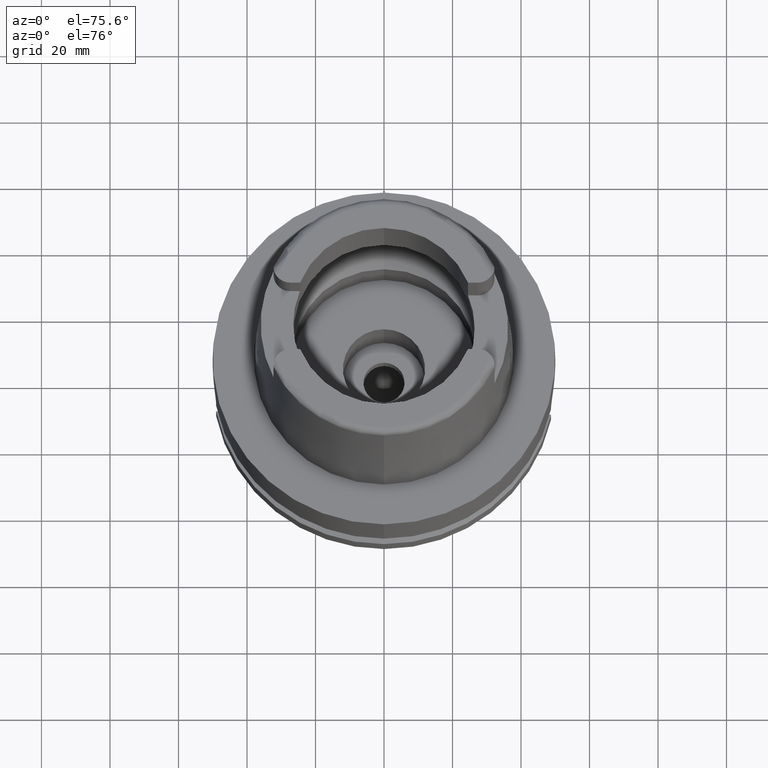
[diagram: clean part render]
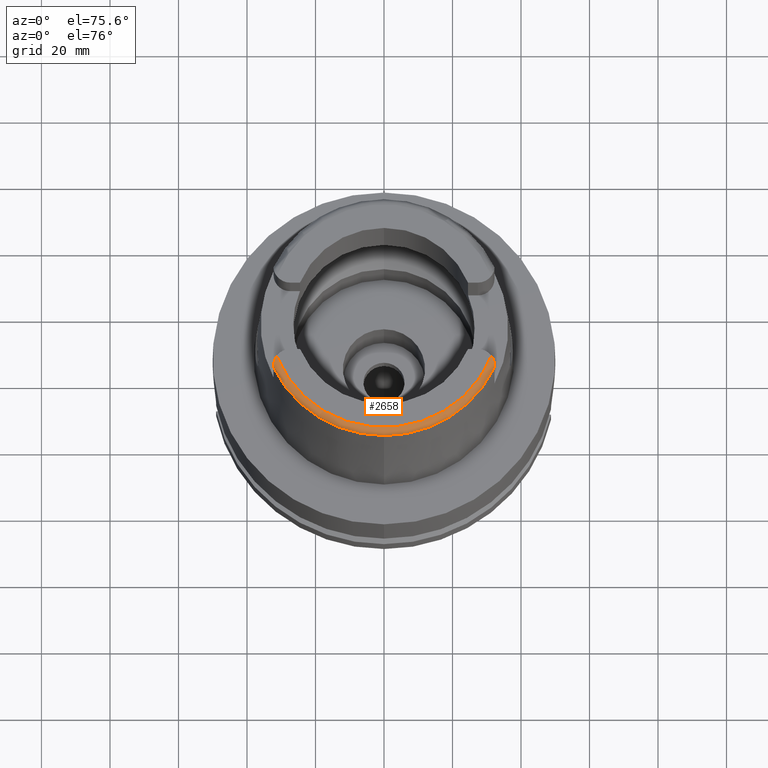
[diagram: same view with one face highlighted and labeled with its STEP entity id]
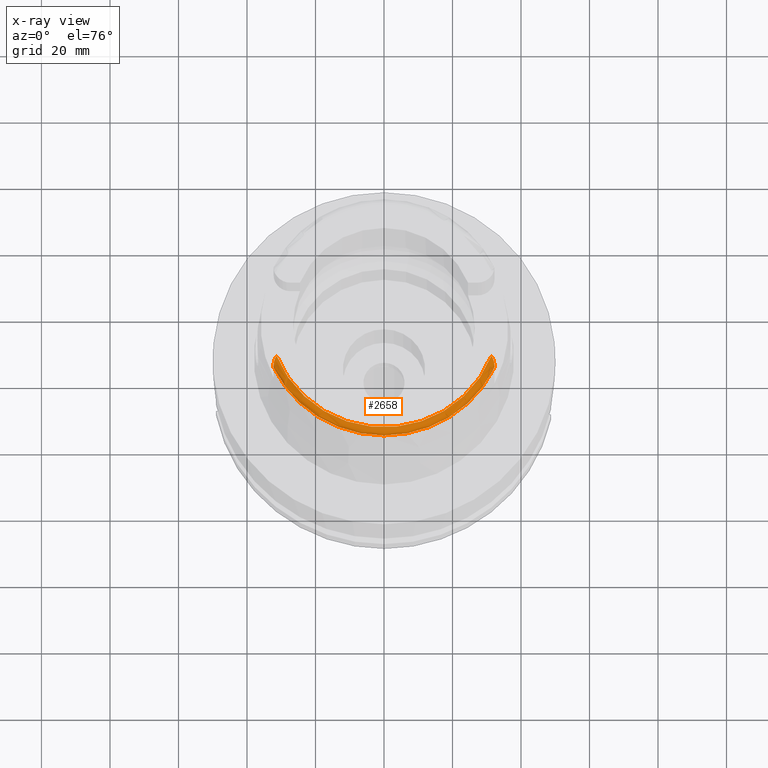
[diagram: x-ray of the same camera — body ghosted, the highlighted face saturated]
A machine part, auxiliary view. The second image highlights one B-rep face of the part: STEP entity #2658.
The next image is the same camera in x-ray: the body ghosted, the highlighted face saturated — about 0% of this face is hidden behind the body in this view.
In plain terms, the highlighted toroidal blend (fillet) surface has major radius 33.5974 mm and minor (blend) radius 2 mm.
Its self-contained STEP definition (entity closure, byte-faithful):
#199=CARTESIAN_POINT('',(0.E0,0.E0,5.E1));
#200=DIRECTION('',(0.E0,0.E0,-1.E0));
#201=DIRECTION('',(9.332215253018E-1,-3.593015233942E-1,0.E0));
#202=AXIS2_PLACEMENT_3D('',#199,#200,#201);
#221=CARTESIAN_POINT('',(-3.224999491821E1,-1.506448486796E1,4.809973211292E1));
#222=CARTESIAN_POINT('',(-3.224999491821E1,-1.505853187103E1,4.815011882791E1));
#223=CARTESIAN_POINT('',(-3.225000237150E1,-1.503782729162E1,4.824997652586E1));
#224=CARTESIAN_POINT('',(-3.224999932243E1,-1.497916029158E1,4.840035914293E1));
#225=CARTESIAN_POINT('',(-3.225E1,-1.492266728977E1,4.849774457542E1));
#226=CARTESIAN_POINT('',(-3.225E1,-1.489E1,4.854599893822E1));
#231=CARTESIAN_POINT('',(-3.225E1,-1.489E1,4.854599893822E1));
#232=CARTESIAN_POINT('',(-3.225E1,-1.484310641903E1,4.861526761294E1));
#233=CARTESIAN_POINT('',(-3.224872316278E1,-1.473216131291E1,4.875467965304E1));
#234=CARTESIAN_POINT('',(-3.223735349541E1,-1.451178280527E1,4.896859433537E1));
#235=CARTESIAN_POINT('',(-3.221015892286E1,-1.424515727449E1,4.917984936625E1));
#236=CARTESIAN_POINT('',(-3.215881704052E1,-1.393052843889E1,4.938856354783E1));
#237=CARTESIAN_POINT('',(-3.207421489618E1,-1.357195745605E1,4.958766939190E1));
#238=CARTESIAN_POINT('',(-3.194466045043E1,-1.317261649458E1,4.976729794577E1));
#239=CARTESIAN_POINT('',(-3.177245380214E1,-1.276897062700E1,4.990387582152E1));
#240=CARTESIAN_POINT('',(-3.156437276381E1,-1.238422922543E1,4.998520808867E1));
#241=CARTESIAN_POINT('',(-3.142403320706E1,-1.217081243271E1,5.E1));
#242=CARTESIAN_POINT('',(-3.135385269249E1,-1.207161079257E1,5.E1));
#247=CARTESIAN_POINT('',(3.135385269249E1,-1.207161079257E1,5.E1));
#248=CARTESIAN_POINT('',(3.142403337631E1,-1.217081267195E1,5.E1));
#249=CARTESIAN_POINT('',(3.156442732417E1,-1.238432367831E1,4.998519313121E1));
#250=CARTESIAN_POINT('',(3.177259330104E1,-1.276919561020E1,4.990384717815E1));
#251=CARTESIAN_POINT('',(3.194516742845E1,-1.317394639577E1,4.976678304850E1));
#252=CARTESIAN_POINT('',(3.207433283503E1,-1.357249048931E1,4.958736609944E1));
#253=CARTESIAN_POINT('',(3.215884157024E1,-1.393062396348E1,4.938851172430E1));
#254=CARTESIAN_POINT('',(3.221027695786E1,-1.424589533054E1,4.917935881723E1));
#255=CARTESIAN_POINT('',(3.223749408832E1,-1.451345867250E1,4.896719328055E1));
#256=CARTESIAN_POINT('',(3.224876530355E1,-1.473384583985E1,4.875280697157E1));
#257=CARTESIAN_POINT('',(3.225E1,-1.484369702798E1,4.861439519718E1));
#258=CARTESIAN_POINT('',(3.225E1,-1.489E1,4.854599893822E1));
#263=CARTESIAN_POINT('',(3.225E1,-1.489E1,4.854599893822E1));
#264=CARTESIAN_POINT('',(3.225E1,-1.492401709762E1,4.849575071189E1));
#265=CARTESIAN_POINT('',(3.225000073602E1,-1.498175062478E1,4.839533236082E1));
#266=CARTESIAN_POINT('',(3.224999742392E1,-1.503947525641E1,4.824410502822E1));
#267=CARTESIAN_POINT('',(3.225000552017E1,-1.505880825304E1,4.814735628166E1));
#268=CARTESIAN_POINT('',(3.225000552017E1,-1.506439825998E1,4.810004194739E1));
#273=CARTESIAN_POINT('',(0.E0,0.E0,4.809987853799E1));
#274=DIRECTION('',(0.E0,0.E0,-1.E0));
#275=DIRECTION('',(9.060280460805E-1,-4.232176505246E-1,0.E0));
#276=AXIS2_PLACEMENT_3D('',#273,#274,#275);
#281=CARTESIAN_POINT('',(0.E0,0.E0,4.809987853799E1));
#282=DIRECTION('',(0.E0,0.E0,-1.E0));
#283=DIRECTION('',(0.E0,-1.E0,0.E0));
#284=AXIS2_PLACEMENT_3D('',#281,#282,#283);
#2192=CARTESIAN_POINT('',(-3.135385269249E1,-1.207161079257E1,5.E1));
#2194=VERTEX_POINT('',#2192);
#2204=CARTESIAN_POINT('',(3.135385269249E1,-1.207161079257E1,5.E1));
#2205=VERTEX_POINT('',#2204);
#2228=VERTEX_POINT('',#231);
#2235=VERTEX_POINT('',#221);
#2236=VERTEX_POINT('',#258);
#2237=VERTEX_POINT('',#268);
#2238=CARTESIAN_POINT('',(1.065814103640E-14,-3.559494289391E1,
4.809987853799E1));
#2239=VERTEX_POINT('',#2238);
#2639=CARTESIAN_POINT('',(0.E0,0.E0,4.8E1));
#2640=DIRECTION('',(0.E0,0.E0,1.E0));
#2641=DIRECTION('',(-4.184165975220E-4,-9.999999124638E-1,0.E0));
#2642=AXIS2_PLACEMENT_3D('',#2639,#2640,#2641);
#2643=TOROIDAL_SURFACE('',#2642,3.359743838136E1,2.E0);
#2645=ORIENTED_EDGE('',*,*,#2644,.T.);
#2646=ORIENTED_EDGE('',*,*,#2630,.T.);
#2647=ORIENTED_EDGE('',*,*,#2619,.F.);
#2649=ORIENTED_EDGE('',*,*,#2648,.T.);
#2651=ORIENTED_EDGE('',*,*,#2650,.T.);
#2653=ORIENTED_EDGE('',*,*,#2652,.T.);
#2655=ORIENTED_EDGE('',*,*,#2654,.T.);
#2656=EDGE_LOOP('',(#2645,#2646,#2647,#2649,#2651,#2653,#2655));
#2657=FACE_OUTER_BOUND('',#2656,.F.);
#203=CIRCLE('',#202,3.359743838136E1);
#227=B_SPLINE_CURVE_WITH_KNOTS('',3,(#221,#222,#223,#224,#225,#226),
.UNSPECIFIED.,.F.,.F.,(4,1,1,4),(0.E0,3.333333333333E-1,6.666666666667E-1,1.E0),
.UNSPECIFIED.);
#243=B_SPLINE_CURVE_WITH_KNOTS('',3,(#231,#232,#233,#234,#235,#236,#237,#238,
#239,#240,#241,#242),.UNSPECIFIED.,.F.,.F.,(4,1,1,1,1,1,1,1,1,4),(0.E0,
1.111111111111E-1,2.222222222222E-1,3.333333333333E-1,4.444444444444E-1,
5.555555555556E-1,6.666666666667E-1,7.777777777778E-1,8.888888888889E-1,1.E0),
.UNSPECIFIED.);
#259=B_SPLINE_CURVE_WITH_KNOTS('',3,(#247,#248,#249,#250,#251,#252,#253,#254,
#255,#256,#257,#258),.UNSPECIFIED.,.F.,.F.,(4,1,1,1,1,1,1,1,1,4),(0.E0,
1.111111111111E-1,2.222222222222E-1,3.333333333333E-1,4.444444444444E-1,
5.555555555556E-1,6.666666666667E-1,7.777777777778E-1,8.888888888889E-1,1.E0),
.UNSPECIFIED.);
#269=B_SPLINE_CURVE_WITH_KNOTS('',3,(#263,#264,#265,#266,#267,#268),
.UNSPECIFIED.,.F.,.F.,(4,1,1,4),(0.E0,3.333333333333E-1,6.666666666667E-1,1.E0),
.UNSPECIFIED.);
#277=CIRCLE('',#276,3.559494289391E1);
#285=CIRCLE('',#284,3.559494289391E1);
#2619=EDGE_CURVE('',#2205,#2194,#203,.T.);
#2630=EDGE_CURVE('',#2228,#2194,#243,.T.);
#2644=EDGE_CURVE('',#2235,#2228,#227,.T.);
#2648=EDGE_CURVE('',#2205,#2236,#259,.T.);
#2650=EDGE_CURVE('',#2236,#2237,#269,.T.);
#2652=EDGE_CURVE('',#2237,#2239,#277,.T.);
#2654=EDGE_CURVE('',#2239,#2235,#285,.T.);
#2658=ADVANCED_FACE('',(#2657),#2643,.T.);